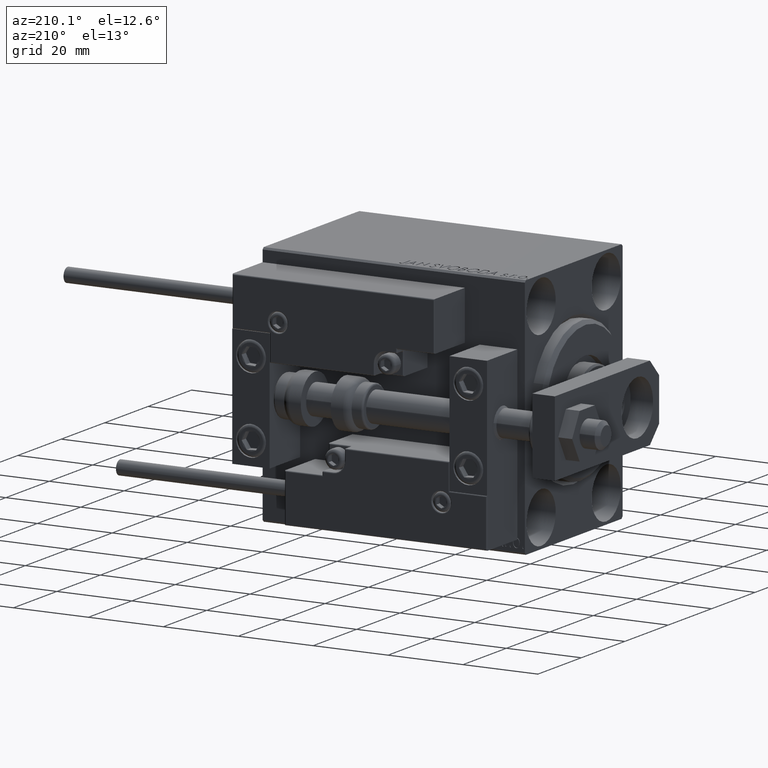
[diagram: clean part render]
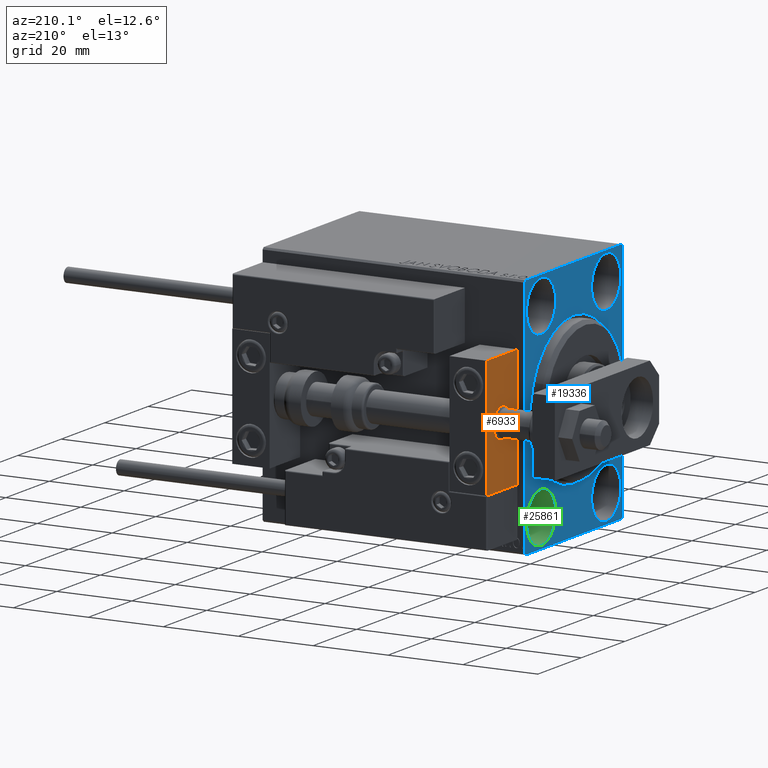
[diagram: same view with three faces highlighted in distinct colors, each labeled with its STEP entity id]
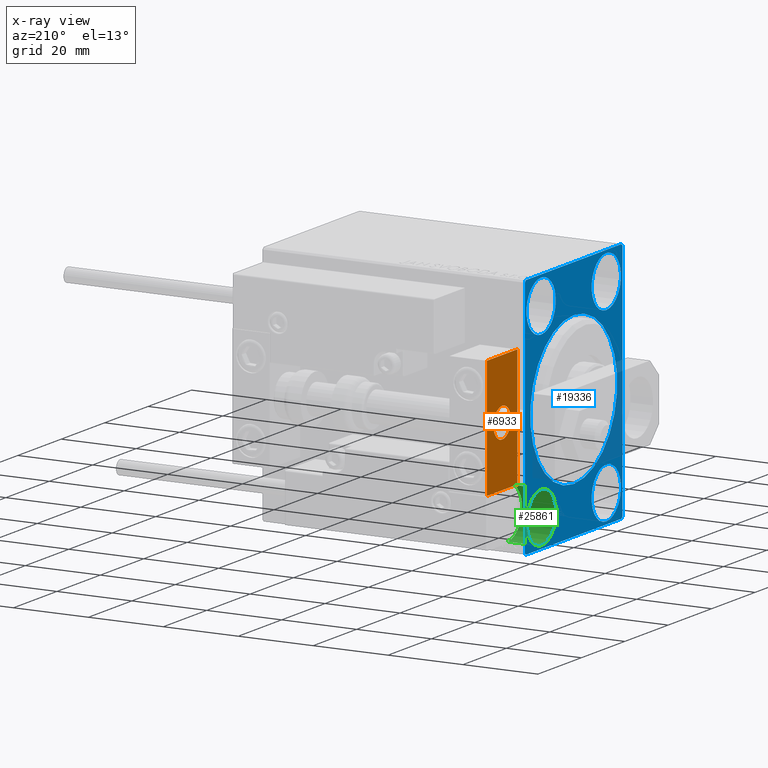
[diagram: x-ray of the same camera — body ghosted, the three highlighted faces saturated]
A machine part, auxiliary view with three faces highlighted in distinct colors.
The next image is the same camera in x-ray (body ghosted, the three faces saturated) — at least one of them is partly hidden behind the body in this view.
Their STEP definitions:

[orange] entity #6933 — the highlighted planar face has unit normal (1, 0, -0).
#362 = AXIS2_PLACEMENT_3D ( 'NONE', #14902, #7772, #23529 ) ;
#550 = LINE ( 'NONE', #16073, #34239 ) ;
#6840 = EDGE_CURVE ( 'NONE', #27291, #25643, #18722, .T. ) ;
#6933 = ADVANCED_FACE ( 'NONE', ( #38040, #8018 ), #38540, .F. ) ;
#7772 = DIRECTION ( 'NONE',  ( -1.000000000000000000, 0.000000000000000000, -0.000000000000000000 ) ) ;
#7921 = EDGE_CURVE ( 'NONE', #34886, #28182, #22332, .T. ) ;
#8018 = FACE_OUTER_BOUND ( 'NONE', #43819, .T. ) ;
#8829 = EDGE_CURVE ( 'NONE', #19901, #25643, #36036, .T. ) ;
#9568 = CARTESIAN_POINT ( 'NONE',  ( 10.00000000000000000, 4.898587196589412829E-16, -4.000000000000000000 ) ) ;
#10979 = VECTOR ( 'NONE', #43187, 1000.000000000000000 ) ;
#11830 = CARTESIAN_POINT ( 'NONE',  ( 10.00000000000000000, -7.000000000000000000, 15.99999999999999289 ) ) ;
#14902 = CARTESIAN_POINT ( 'NONE',  ( 10.00000000000000000, 0.000000000000000000, 0.000000000000000000 ) ) ;
#14910 = CARTESIAN_POINT ( 'NONE',  ( 10.00000000000000000, 0.000000000000000000, 0.000000000000000000 ) ) ;
#15174 = DIRECTION ( 'NONE',  ( -1.000000000000000000, 0.000000000000000000, 0.000000000000000000 ) ) ;
#16073 = CARTESIAN_POINT ( 'NONE',  ( 10.00000000000000000, 7.000000000000000000, 15.99999999999999289 ) ) ;
#18722 = LINE ( 'NONE', #11830, #30424 ) ;
#19901 = VERTEX_POINT ( 'NONE', #37969 ) ;
#20380 = DIRECTION ( 'NONE',  ( 0.000000000000000000, -1.000000000000000000, 0.000000000000000000 ) ) ;
#21179 = CARTESIAN_POINT ( 'NONE',  ( 10.00000000000000000, -7.000000000000000000, -16.00000000000000711 ) ) ;
#22332 = CIRCLE ( 'NONE', #28841, 4.000000000000000000 ) ;
#22575 = ORIENTED_EDGE ( 'NONE', *, *, #25665, .F. ) ;
#22891 = CARTESIAN_POINT ( 'NONE',  ( 10.00000000000000000, 0.000000000000000000, 0.000000000000000000 ) ) ;
#23529 = DIRECTION ( 'NONE',  ( -0.000000000000000000, 0.000000000000000000, 1.000000000000000000 ) ) ;
#25272 = EDGE_LOOP ( 'NONE', ( #48126, #46957 ) ) ;
#25643 = VERTEX_POINT ( 'NONE', #21179 ) ;
#25665 = EDGE_CURVE ( 'NONE', #41180, #19901, #31893, .T. ) ;
#26962 = DIRECTION ( 'NONE',  ( -1.000000000000000000, 0.000000000000000000, 0.000000000000000000 ) ) ;
#27291 = VERTEX_POINT ( 'NONE', #41770 ) ;
#27349 = DIRECTION ( 'NONE',  ( 0.000000000000000000, 0.000000000000000000, -1.000000000000000000 ) ) ;
#27493 = EDGE_CURVE ( 'NONE', #41180, #27291, #550, .T. ) ;
#27666 = CARTESIAN_POINT ( 'NONE',  ( 10.00000000000000000, 7.000000000000000000, -16.00000000000000711 ) ) ;
#28182 = VERTEX_POINT ( 'NONE', #9568 ) ;
#28841 = AXIS2_PLACEMENT_3D ( 'NONE', #14910, #15174, #43132 ) ;
#30424 = VECTOR ( 'NONE', #27349, 1000.000000000000000 ) ;
#30544 = DIRECTION ( 'NONE',  ( 0.000000000000000000, 0.000000000000000000, 1.000000000000000000 ) ) ;
#31893 = LINE ( 'NONE', #40522, #39061 ) ;
#34239 = VECTOR ( 'NONE', #20380, 1000.000000000000000 ) ;
#34886 = VERTEX_POINT ( 'NONE', #46852 ) ;
#36036 = LINE ( 'NONE', #27666, #10979 ) ;
#37101 = ORIENTED_EDGE ( 'NONE', *, *, #27493, .T. ) ;
#37969 = CARTESIAN_POINT ( 'NONE',  ( 10.00000000000000000, 7.000000000000000000, -16.00000000000000711 ) ) ;
#38040 = FACE_BOUND ( 'NONE', #25272, .T. ) ;
#38540 = PLANE ( 'NONE',  #362 ) ;
#38943 = AXIS2_PLACEMENT_3D ( 'NONE', #22891, #26962, #30544 ) ;
#39061 = VECTOR ( 'NONE', #43620, 1000.000000000000000 ) ;
#40522 = CARTESIAN_POINT ( 'NONE',  ( 10.00000000000000000, 7.000000000000000000, 15.99999999999999289 ) ) ;
#41180 = VERTEX_POINT ( 'NONE', #48347 ) ;
#41770 = CARTESIAN_POINT ( 'NONE',  ( 10.00000000000000000, -7.000000000000000000, 15.99999999999999289 ) ) ;
#42994 = CIRCLE ( 'NONE', #38943, 4.000000000000000000 ) ;
#43132 = DIRECTION ( 'NONE',  ( 0.000000000000000000, 0.000000000000000000, 1.000000000000000000 ) ) ;
#43187 = DIRECTION ( 'NONE',  ( 0.000000000000000000, -1.000000000000000000, 0.000000000000000000 ) ) ;
#43620 = DIRECTION ( 'NONE',  ( 0.000000000000000000, 0.000000000000000000, -1.000000000000000000 ) ) ;
#43819 = EDGE_LOOP ( 'NONE', ( #45811, #45698, #22575, #37101 ) ) ;
#45698 = ORIENTED_EDGE ( 'NONE', *, *, #8829, .F. ) ;
#45811 = ORIENTED_EDGE ( 'NONE', *, *, #6840, .T. ) ;
#46852 = CARTESIAN_POINT ( 'NONE',  ( 10.00000000000000000, 0.000000000000000000, 4.000000000000000000 ) ) ;
#46957 = ORIENTED_EDGE ( 'NONE', *, *, #49579, .T. ) ;
#48126 = ORIENTED_EDGE ( 'NONE', *, *, #7921, .T. ) ;
#48347 = CARTESIAN_POINT ( 'NONE',  ( 10.00000000000000000, 7.000000000000000000, 15.99999999999999289 ) ) ;
#49579 = EDGE_CURVE ( 'NONE', #28182, #34886, #42994, .T. ) ;

[blue] entity #19336 — the highlighted planar face has unit normal (1, 0, 0).
#23 = LINE ( 'NONE', #15801, #32295 ) ;
#319 = DIRECTION ( 'NONE',  ( 0.000000000000000000, 0.000000000000000000, -1.000000000000000000 ) ) ;
#437 = ORIENTED_EDGE ( 'NONE', *, *, #5720, .F. ) ;
#896 = CARTESIAN_POINT ( 'NONE',  ( 0.000000000000000000, 2.449293598294706907E-15, -20.00000000000000355 ) ) ;
#931 = DIRECTION ( 'NONE',  ( -1.000000000000000000, 0.000000000000000000, 0.000000000000000000 ) ) ;
#1418 = ORIENTED_EDGE ( 'NONE', *, *, #19266, .T. ) ;
#1528 = VECTOR ( 'NONE', #43428, 1000.000000000000114 ) ;
#1984 = ORIENTED_EDGE ( 'NONE', *, *, #22270, .F. ) ;
#2174 = CARTESIAN_POINT ( 'NONE',  ( 0.000000000000000000, -22.50000000000000711, -32.50000000000000711 ) ) ;
#2182 = CARTESIAN_POINT ( 'NONE',  ( 0.000000000000000000, -15.00000000000000355, -31.75000000000000000 ) ) ;
#2336 = VECTOR ( 'NONE', #35948, 999.9999999999998863 ) ;
#2470 = DIRECTION ( 'NONE',  ( 1.000000000000000000, 0.000000000000000000, 0.000000000000000000 ) ) ;
#2626 = VERTEX_POINT ( 'NONE', #37818 ) ;
#2701 = AXIS2_PLACEMENT_3D ( 'NONE', #3398, #3902, #319 ) ;
#2759 = CIRCLE ( 'NONE', #33623, 6.749999999999999112 ) ;
#3020 = LINE ( 'NONE', #18788, #28953 ) ;
#3128 = AXIS2_PLACEMENT_3D ( 'NONE', #18249, #2470, #30469 ) ;
#3139 = LINE ( 'NONE', #30119, #35842 ) ;
#3379 = AXIS2_PLACEMENT_3D ( 'NONE', #44508, #48561, #13705 ) ;
#3398 = CARTESIAN_POINT ( 'NONE',  ( 0.000000000000000000, 0.000000000000000000, 0.000000000000000000 ) ) ;
#3564 = VECTOR ( 'NONE', #32950, 1000.000000000000000 ) ;
#3872 = VERTEX_POINT ( 'NONE', #12826 ) ;
#3902 = DIRECTION ( 'NONE',  ( 1.000000000000000000, 0.000000000000000000, 0.000000000000000000 ) ) ;
#4715 = CIRCLE ( 'NONE', #16880, 6.749999999999999112 ) ;
#5502 = VERTEX_POINT ( 'NONE', #38847 ) ;
#5658 = DIRECTION ( 'NONE',  ( -1.000000000000000000, 0.000000000000000000, 0.000000000000000000 ) ) ;
#5720 = EDGE_CURVE ( 'NONE', #12843, #37865, #26083, .T. ) ;
#5883 = ORIENTED_EDGE ( 'NONE', *, *, #45585, .F. ) ;
#6121 = EDGE_LOOP ( 'NONE', ( #29919, #7568 ) ) ;
#6278 = EDGE_CURVE ( 'NONE', #41077, #29529, #2759, .T. ) ;
#6303 = PLANE ( 'NONE',  #3128 ) ;
#6503 = ORIENTED_EDGE ( 'NONE', *, *, #47101, .T. ) ;
#6548 = FACE_BOUND ( 'NONE', #30291, .T. ) ;
#7020 = DIRECTION ( 'NONE',  ( 0.000000000000000000, 0.000000000000000000, 1.000000000000000000 ) ) ;
#7213 = VERTEX_POINT ( 'NONE', #14072 ) ;
#7288 = DIRECTION ( 'NONE',  ( -1.000000000000000000, 0.000000000000000000, 0.000000000000000000 ) ) ;
#7568 = ORIENTED_EDGE ( 'NONE', *, *, #49852, .F. ) ;
#7718 = VERTEX_POINT ( 'NONE', #14655 ) ;
#7930 = CARTESIAN_POINT ( 'NONE',  ( 0.000000000000000000, 0.000000000000000000, 0.000000000000000000 ) ) ;
#8036 = CARTESIAN_POINT ( 'NONE',  ( 0.000000000000000000, 0.000000000000000000, 20.00000000000000355 ) ) ;
#8078 = ORIENTED_EDGE ( 'NONE', *, *, #29425, .F. ) ;
#8995 = EDGE_CURVE ( 'NONE', #7213, #28057, #36169, .T. ) ;
#9540 = CIRCLE ( 'NONE', #22535, 6.749999999999999112 ) ;
#10732 = EDGE_CURVE ( 'NONE', #49326, #44498, #3020, .T. ) ;
#10769 = ORIENTED_EDGE ( 'NONE', *, *, #20318, .T. ) ;
#11121 = CARTESIAN_POINT ( 'NONE',  ( 0.000000000000000000, -22.00000000000002132, -32.50000000000000711 ) ) ;
#11145 = VERTEX_POINT ( 'NONE', #896 ) ;
#11153 = CIRCLE ( 'NONE', #16813, 6.749999999999999112 ) ;
#11585 = DIRECTION ( 'NONE',  ( -1.000000000000000000, 0.000000000000000000, 0.000000000000000000 ) ) ;
#12826 = CARTESIAN_POINT ( 'NONE',  ( 0.000000000000000000, 14.99999999999999645, -31.75000000000000000 ) ) ;
#12843 = VERTEX_POINT ( 'NONE', #11121 ) ;
#12958 = DIRECTION ( 'NONE',  ( 0.000000000000000000, 0.000000000000000000, 1.000000000000000000 ) ) ;
#13425 = CARTESIAN_POINT ( 'NONE',  ( 0.000000000000000000, -22.00000000000002132, -32.50000000000000711 ) ) ;
#13705 = DIRECTION ( 'NONE',  ( 0.000000000000000000, 0.000000000000000000, 1.000000000000000000 ) ) ;
#13927 = FACE_BOUND ( 'NONE', #25958, .T. ) ;
#14072 = CARTESIAN_POINT ( 'NONE',  ( 0.000000000000000000, 15.00000000000000355, 31.75000000000000000 ) ) ;
#14442 = LINE ( 'NONE', #13425, #46183 ) ;
#14655 = CARTESIAN_POINT ( 'NONE',  ( 0.000000000000000000, -15.00000000000000355, -18.25000000000000355 ) ) ;
#15801 = CARTESIAN_POINT ( 'NONE',  ( 0.000000000000000000, 22.50000000000000000, -32.50000000000000711 ) ) ;
#16561 = DIRECTION ( 'NONE',  ( 1.000000000000000000, 0.000000000000000000, 0.000000000000000000 ) ) ;
#16813 = AXIS2_PLACEMENT_3D ( 'NONE', #47922, #5658, #17361 ) ;
#16880 = AXIS2_PLACEMENT_3D ( 'NONE', #23240, #42834, #43325 ) ;
#17280 = VECTOR ( 'NONE', #41857, 1000.000000000000000 ) ;
#17361 = DIRECTION ( 'NONE',  ( 0.000000000000000000, 0.000000000000000000, 1.000000000000000000 ) ) ;
#17614 = EDGE_CURVE ( 'NONE', #43093, #5502, #23, .T. ) ;
#18249 = CARTESIAN_POINT ( 'NONE',  ( 0.000000000000000000, 0.000000000000000000, 0.000000000000000000 ) ) ;
#18416 = DIRECTION ( 'NONE',  ( 0.000000000000000000, 0.000000000000000000, -1.000000000000000000 ) ) ;
#18788 = CARTESIAN_POINT ( 'NONE',  ( 0.000000000000000000, -22.50000000000000711, 31.99999999999999289 ) ) ;
#19221 = LINE ( 'NONE', #22265, #17280 ) ;
#19266 = EDGE_CURVE ( 'NONE', #12843, #2626, #14442, .T. ) ;
#19336 = ADVANCED_FACE ( 'NONE', ( #13927, #29453, #6548, #37571, #44974, #21801 ), #6303, .F. ) ;
#20318 = EDGE_CURVE ( 'NONE', #43093, #37865, #24583, .T. ) ;
#20834 = CARTESIAN_POINT ( 'NONE',  ( 0.000000000000000000, -14.99999999999999645, 25.00000000000000000 ) ) ;
#21571 = EDGE_CURVE ( 'NONE', #21760, #3872, #50318, .T. ) ;
#21760 = VERTEX_POINT ( 'NONE', #23522 ) ;
#21801 = FACE_OUTER_BOUND ( 'NONE', #28041, .T. ) ;
#22265 = CARTESIAN_POINT ( 'NONE',  ( 0.000000000000000000, 22.49999999999999289, 32.50000000000000000 ) ) ;
#22270 = EDGE_CURVE ( 'NONE', #29529, #41077, #22844, .T. ) ;
#22429 = CARTESIAN_POINT ( 'NONE',  ( 0.000000000000000000, -14.99999999999999645, 18.25000000000000355 ) ) ;
#22477 = ORIENTED_EDGE ( 'NONE', *, *, #44281, .F. ) ;
#22535 = AXIS2_PLACEMENT_3D ( 'NONE', #42382, #7288, #38561 ) ;
#22844 = CIRCLE ( 'NONE', #3379, 6.749999999999999112 ) ;
#22880 = EDGE_CURVE ( 'NONE', #49326, #2626, #3139, .T. ) ;
#23089 = CARTESIAN_POINT ( 'NONE',  ( 0.000000000000000000, 22.00000000000001421, -32.50000000000000711 ) ) ;
#23240 = CARTESIAN_POINT ( 'NONE',  ( 0.000000000000000000, -15.00000000000000355, -25.00000000000000000 ) ) ;
#23490 = AXIS2_PLACEMENT_3D ( 'NONE', #36281, #931, #28417 ) ;
#23522 = CARTESIAN_POINT ( 'NONE',  ( 0.000000000000000000, 14.99999999999999645, -18.25000000000000355 ) ) ;
#24583 = LINE ( 'NONE', #35536, #1528 ) ;
#24597 = ORIENTED_EDGE ( 'NONE', *, *, #8995, .F. ) ;
#24656 = CIRCLE ( 'NONE', #2701, 20.00000000000000355 ) ;
#25958 = EDGE_LOOP ( 'NONE', ( #38022, #6503 ) ) ;
#25992 = CARTESIAN_POINT ( 'NONE',  ( 0.000000000000000000, 22.50000000000000000, -32.00000000000002132 ) ) ;
#26083 = LINE ( 'NONE', #2174, #3564 ) ;
#26901 = ORIENTED_EDGE ( 'NONE', *, *, #17614, .F. ) ;
#28041 = EDGE_LOOP ( 'NONE', ( #36167, #40486, #8078, #36515, #26901, #10769, #437, #1418 ) ) ;
#28057 = VERTEX_POINT ( 'NONE', #39089 ) ;
#28417 = DIRECTION ( 'NONE',  ( 0.000000000000000000, 0.000000000000000000, 1.000000000000000000 ) ) ;
#28580 = LINE ( 'NONE', #44355, #2336 ) ;
#28953 = VECTOR ( 'NONE', #29743, 1000.000000000000114 ) ;
#28960 = DIRECTION ( 'NONE',  ( -0.000000000000000000, -0.7071067811865378028, 0.7071067811865573427 ) ) ;
#29089 = VERTEX_POINT ( 'NONE', #49829 ) ;
#29332 = VERTEX_POINT ( 'NONE', #2182 ) ;
#29425 = EDGE_CURVE ( 'NONE', #29089, #44498, #19221, .T. ) ;
#29453 = FACE_BOUND ( 'NONE', #6121, .T. ) ;
#29529 = VERTEX_POINT ( 'NONE', #41604 ) ;
#29743 = DIRECTION ( 'NONE',  ( -0.000000000000000000, 0.7071067811865474617, 0.7071067811865474617 ) ) ;
#29919 = ORIENTED_EDGE ( 'NONE', *, *, #21571, .F. ) ;
#29926 = CIRCLE ( 'NONE', #33168, 20.00000000000000355 ) ;
#30119 = CARTESIAN_POINT ( 'NONE',  ( 0.000000000000000000, -22.50000000000000711, 32.49999999999999289 ) ) ;
#30291 = EDGE_LOOP ( 'NONE', ( #1984, #32422 ) ) ;
#30469 = DIRECTION ( 'NONE',  ( 0.000000000000000000, 0.000000000000000000, -1.000000000000000000 ) ) ;
#30485 = CARTESIAN_POINT ( 'NONE',  ( 0.000000000000000000, 14.99999999999999645, -25.00000000000000000 ) ) ;
#32110 = EDGE_CURVE ( 'NONE', #39219, #11145, #24656, .T. ) ;
#32295 = VECTOR ( 'NONE', #38698, 1000.000000000000000 ) ;
#32422 = ORIENTED_EDGE ( 'NONE', *, *, #6278, .F. ) ;
#32950 = DIRECTION ( 'NONE',  ( 0.000000000000000000, 1.000000000000000000, 0.000000000000000000 ) ) ;
#33168 = AXIS2_PLACEMENT_3D ( 'NONE', #7930, #16561, #38701 ) ;
#33623 = AXIS2_PLACEMENT_3D ( 'NONE', #20834, #47574, #12958 ) ;
#34972 = CARTESIAN_POINT ( 'NONE',  ( 0.000000000000000000, 15.00000000000000355, 25.00000000000000000 ) ) ;
#35536 = CARTESIAN_POINT ( 'NONE',  ( 0.000000000000000000, 22.50000000000000000, -32.00000000000002132 ) ) ;
#35842 = VECTOR ( 'NONE', #18416, 1000.000000000000000 ) ;
#35948 = DIRECTION ( 'NONE',  ( -0.000000000000000000, 0.7071067811865425767, -0.7071067811865525687 ) ) ;
#36167 = ORIENTED_EDGE ( 'NONE', *, *, #22880, .F. ) ;
#36169 = CIRCLE ( 'NONE', #36955, 6.749999999999999112 ) ;
#36281 = CARTESIAN_POINT ( 'NONE',  ( 0.000000000000000000, 14.99999999999999645, -25.00000000000000000 ) ) ;
#36515 = ORIENTED_EDGE ( 'NONE', *, *, #48280, .T. ) ;
#36955 = AXIS2_PLACEMENT_3D ( 'NONE', #34972, #11585, #7020 ) ;
#37571 = FACE_BOUND ( 'NONE', #44321, .T. ) ;
#37818 = CARTESIAN_POINT ( 'NONE',  ( 0.000000000000000000, -22.50000000000000711, -32.00000000000000711 ) ) ;
#37838 = ORIENTED_EDGE ( 'NONE', *, *, #46137, .F. ) ;
#37865 = VERTEX_POINT ( 'NONE', #23089 ) ;
#38022 = ORIENTED_EDGE ( 'NONE', *, *, #32110, .T. ) ;
#38466 = CARTESIAN_POINT ( 'NONE',  ( 0.000000000000000000, -22.50000000000000711, 31.99999999999999289 ) ) ;
#38561 = DIRECTION ( 'NONE',  ( 0.000000000000000000, 0.000000000000000000, 1.000000000000000000 ) ) ;
#38698 = DIRECTION ( 'NONE',  ( 0.000000000000000000, -1.067522139062650425E-16, 1.000000000000000000 ) ) ;
#38701 = DIRECTION ( 'NONE',  ( 0.000000000000000000, 0.000000000000000000, -1.000000000000000000 ) ) ;
#38847 = CARTESIAN_POINT ( 'NONE',  ( 0.000000000000000000, 22.49999999999999289, 31.99999999999999289 ) ) ;
#39089 = CARTESIAN_POINT ( 'NONE',  ( 0.000000000000000000, 15.00000000000000355, 18.25000000000000355 ) ) ;
#39219 = VERTEX_POINT ( 'NONE', #8036 ) ;
#39750 = AXIS2_PLACEMENT_3D ( 'NONE', #30485, #46017, #49318 ) ;
#40454 = EDGE_LOOP ( 'NONE', ( #22477, #37838 ) ) ;
#40486 = ORIENTED_EDGE ( 'NONE', *, *, #10732, .T. ) ;
#41077 = VERTEX_POINT ( 'NONE', #22429 ) ;
#41604 = CARTESIAN_POINT ( 'NONE',  ( 0.000000000000000000, -14.99999999999999645, 31.75000000000000000 ) ) ;
#41857 = DIRECTION ( 'NONE',  ( 0.000000000000000000, -1.000000000000000000, -1.541976423090495387E-16 ) ) ;
#42382 = CARTESIAN_POINT ( 'NONE',  ( 0.000000000000000000, 15.00000000000000355, 25.00000000000000000 ) ) ;
#42834 = DIRECTION ( 'NONE',  ( -1.000000000000000000, 0.000000000000000000, 0.000000000000000000 ) ) ;
#43093 = VERTEX_POINT ( 'NONE', #25992 ) ;
#43325 = DIRECTION ( 'NONE',  ( 0.000000000000000000, 0.000000000000000000, 1.000000000000000000 ) ) ;
#43428 = DIRECTION ( 'NONE',  ( 0.000000000000000000, -0.7071067811865376918, -0.7071067811865573427 ) ) ;
#43734 = CARTESIAN_POINT ( 'NONE',  ( 0.000000000000000000, -21.99999999999999289, 32.49999999999999289 ) ) ;
#44281 = EDGE_CURVE ( 'NONE', #7718, #29332, #11153, .T. ) ;
#44321 = EDGE_LOOP ( 'NONE', ( #24597, #5883 ) ) ;
#44355 = CARTESIAN_POINT ( 'NONE',  ( 0.000000000000000000, 21.99999999999999289, 32.50000000000000000 ) ) ;
#44498 = VERTEX_POINT ( 'NONE', #43734 ) ;
#44508 = CARTESIAN_POINT ( 'NONE',  ( 0.000000000000000000, -14.99999999999999645, 25.00000000000000000 ) ) ;
#44974 = FACE_BOUND ( 'NONE', #40454, .T. ) ;
#45585 = EDGE_CURVE ( 'NONE', #28057, #7213, #9540, .T. ) ;
#46017 = DIRECTION ( 'NONE',  ( -1.000000000000000000, 0.000000000000000000, 0.000000000000000000 ) ) ;
#46137 = EDGE_CURVE ( 'NONE', #29332, #7718, #4715, .T. ) ;
#46183 = VECTOR ( 'NONE', #28960, 1000.000000000000000 ) ;
#47101 = EDGE_CURVE ( 'NONE', #11145, #39219, #29926, .T. ) ;
#47574 = DIRECTION ( 'NONE',  ( -1.000000000000000000, 0.000000000000000000, 0.000000000000000000 ) ) ;
#47922 = CARTESIAN_POINT ( 'NONE',  ( 0.000000000000000000, -15.00000000000000355, -25.00000000000000000 ) ) ;
#48280 = EDGE_CURVE ( 'NONE', #29089, #5502, #28580, .T. ) ;
#48561 = DIRECTION ( 'NONE',  ( -1.000000000000000000, 0.000000000000000000, 0.000000000000000000 ) ) ;
#48684 = CIRCLE ( 'NONE', #39750, 6.749999999999999112 ) ;
#49318 = DIRECTION ( 'NONE',  ( 0.000000000000000000, 0.000000000000000000, 1.000000000000000000 ) ) ;
#49326 = VERTEX_POINT ( 'NONE', #38466 ) ;
#49829 = CARTESIAN_POINT ( 'NONE',  ( 0.000000000000000000, 21.99999999999999289, 32.50000000000000000 ) ) ;
#49852 = EDGE_CURVE ( 'NONE', #3872, #21760, #48684, .T. ) ;
#50318 = CIRCLE ( 'NONE', #23490, 6.749999999999999112 ) ;

[green] entity #25861 — the highlighted cylindrical surface (edge-blend (fillet) strip) has radius 6.75 mm, axis along (-1, -0, -0).
#289 = DIRECTION ( 'NONE',  ( 0.000000000000000000, 0.000000000000000000, 1.000000000000000000 ) ) ;
#1784 = CARTESIAN_POINT ( 'NONE',  ( 9.000000000000000000, 14.99999999999999645, -18.25000000000000355 ) ) ;
#1955 = DIRECTION ( 'NONE',  ( -1.000000000000000000, -0.000000000000000000, -0.000000000000000000 ) ) ;
#2051 = ORIENTED_EDGE ( 'NONE', *, *, #50336, .F. ) ;
#3872 = VERTEX_POINT ( 'NONE', #12826 ) ;
#6371 = ORIENTED_EDGE ( 'NONE', *, *, #40101, .T. ) ;
#8195 = CARTESIAN_POINT ( 'NONE',  ( 9.000000000000000000, 14.99999999999999645, -25.00000000000000000 ) ) ;
#8867 = LINE ( 'NONE', #40864, #24030 ) ;
#9149 = VERTEX_POINT ( 'NONE', #24529 ) ;
#12826 = CARTESIAN_POINT ( 'NONE',  ( 0.000000000000000000, 14.99999999999999645, -31.75000000000000000 ) ) ;
#14032 = DIRECTION ( 'NONE',  ( -1.000000000000000000, -0.000000000000000000, -0.000000000000000000 ) ) ;
#15516 = CIRCLE ( 'NONE', #17142, 6.749999999999999112 ) ;
#16341 = ORIENTED_EDGE ( 'NONE', *, *, #40584, .F. ) ;
#17142 = AXIS2_PLACEMENT_3D ( 'NONE', #20636, #31848, #28043 ) ;
#19335 = ORIENTED_EDGE ( 'NONE', *, *, #49852, .T. ) ;
#20636 = CARTESIAN_POINT ( 'NONE',  ( 9.000000000000000000, 14.99999999999999645, -25.00000000000000000 ) ) ;
#21760 = VERTEX_POINT ( 'NONE', #23522 ) ;
#23522 = CARTESIAN_POINT ( 'NONE',  ( 0.000000000000000000, 14.99999999999999645, -18.25000000000000355 ) ) ;
#24030 = VECTOR ( 'NONE', #1955, 1000.000000000000000 ) ;
#24529 = CARTESIAN_POINT ( 'NONE',  ( 9.000000000000000000, 14.99999999999999645, -31.75000000000000000 ) ) ;
#25861 = ADVANCED_FACE ( 'NONE', ( #38967 ), #38721, .F. ) ;
#28043 = DIRECTION ( 'NONE',  ( 0.000000000000000000, 0.000000000000000000, 1.000000000000000000 ) ) ;
#30485 = CARTESIAN_POINT ( 'NONE',  ( 0.000000000000000000, 14.99999999999999645, -25.00000000000000000 ) ) ;
#31297 = VECTOR ( 'NONE', #14032, 1000.000000000000000 ) ;
#31848 = DIRECTION ( 'NONE',  ( -1.000000000000000000, 0.000000000000000000, 0.000000000000000000 ) ) ;
#33616 = LINE ( 'NONE', #49418, #31297 ) ;
#38721 = CYLINDRICAL_SURFACE ( 'NONE', #48057, 6.749999999999999112 ) ;
#38967 = FACE_OUTER_BOUND ( 'NONE', #47850, .T. ) ;
#39750 = AXIS2_PLACEMENT_3D ( 'NONE', #30485, #46017, #49318 ) ;
#40101 = EDGE_CURVE ( 'NONE', #9149, #3872, #33616, .T. ) ;
#40584 = EDGE_CURVE ( 'NONE', #41226, #21760, #8867, .T. ) ;
#40864 = CARTESIAN_POINT ( 'NONE',  ( 9.000000000000000000, 14.99999999999999645, -18.25000000000000355 ) ) ;
#41226 = VERTEX_POINT ( 'NONE', #1784 ) ;
#46017 = DIRECTION ( 'NONE',  ( -1.000000000000000000, 0.000000000000000000, 0.000000000000000000 ) ) ;
#47850 = EDGE_LOOP ( 'NONE', ( #2051, #6371, #19335, #16341 ) ) ;
#48057 = AXIS2_PLACEMENT_3D ( 'NONE', #8195, #50200, #289 ) ;
#48684 = CIRCLE ( 'NONE', #39750, 6.749999999999999112 ) ;
#49318 = DIRECTION ( 'NONE',  ( 0.000000000000000000, 0.000000000000000000, 1.000000000000000000 ) ) ;
#49418 = CARTESIAN_POINT ( 'NONE',  ( 9.000000000000000000, 14.99999999999999645, -31.75000000000000000 ) ) ;
#49852 = EDGE_CURVE ( 'NONE', #3872, #21760, #48684, .T. ) ;
#50200 = DIRECTION ( 'NONE',  ( -1.000000000000000000, -0.000000000000000000, -0.000000000000000000 ) ) ;
#50336 = EDGE_CURVE ( 'NONE', #9149, #41226, #15516, .T. ) ;